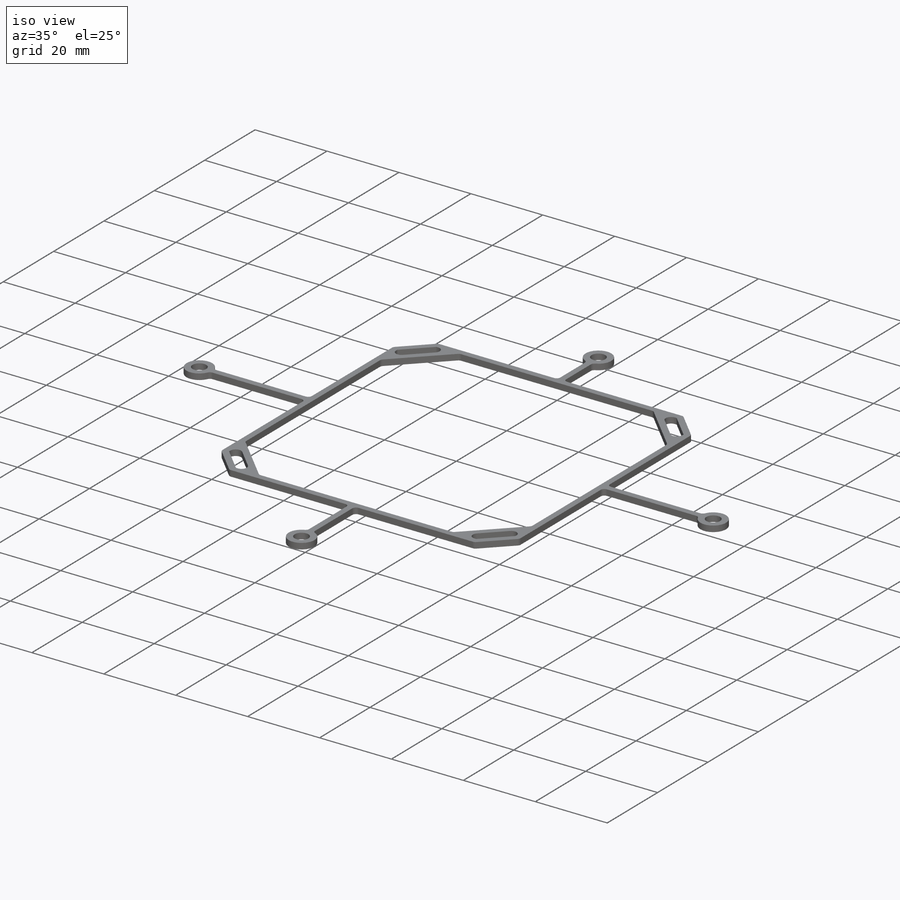
[diagram: iso view]
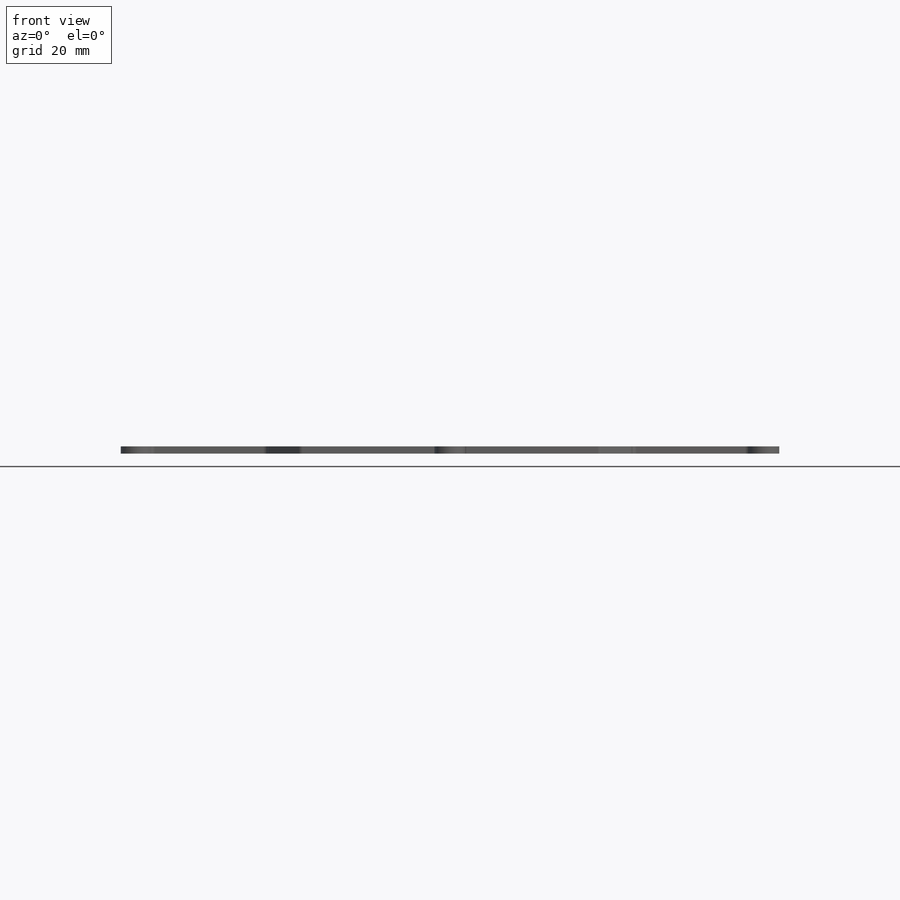
[diagram: front view]
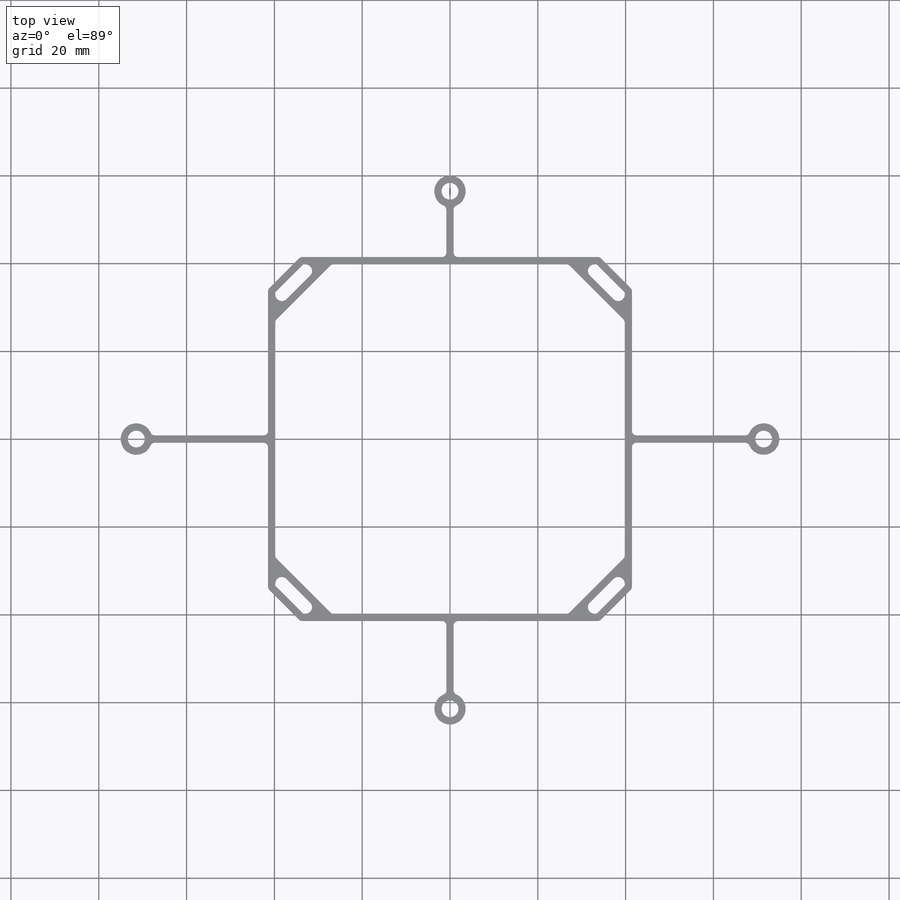
[diagram: top view]
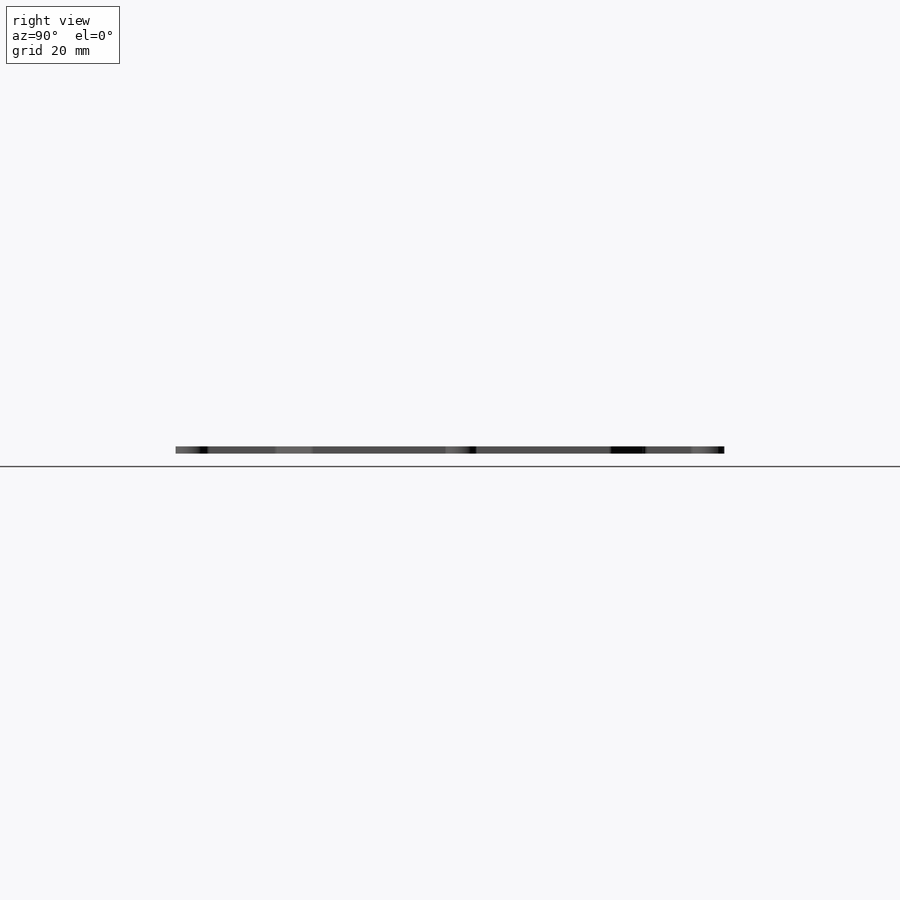
[diagram: right view]
SOLIDWORKS PART (.sldprt)
format: sldprt  version: not decoded by parser v0  size: 363,520 bytes
history: native  units: mm
features: fillet x3, material x1, sketch x1, extrude x1 (+13 scaffold rows collapsed)
feature tree (19):
  scaffold x13  (default folders/planes/origin — collapsed)
  material  "Material <not specified>"
  sketch  "Sketch1"  dims[c1.D10=3.85mm c1.D11=3.85mm c1.D15=3.85mm c1.D16=3.85mm c1.D20=3.85mm c1.D21=7.15mm c1.D1=79.5976mm c1.D2=79.5976mm c1.D3=9.0376mm c2.D2=79.5976mm c2.D5=79.5976mm c2.D1=1.65mm c3.D5=~66.816504mm c3.D6=~11.382909mm c3.D1=1.65mm c4.D5=1.65mm c4.D7=2.91mm c4.D8=1.65mm c4.D11=1.65mm c4.D12=0.825mm c4.D13=0.825mm c4.D14=15.0mm c4.D15=1.65mm c4.D17=30.0mm c4.D18=0.825mm c4.D19=0.825mm c4.D21=1.65mm c4.D22=0.825mm c4.D23=0.825mm c4.D24=20.0mm c4.D25=~12.839362mm c4.D4=4.0 c4.D6=4.0 c4.D9=4.0]
  extrude  "Boss-Extrude1"  Depth=1.65mm
  fillet  "Fillet4"  Radius=1mm
  fillet  "Fillet3"  Radius=1.5mm
  fillet  "Fillet5"  Radius=1mm
decode coverage: 5 of 5 modeling features carry decoded parameters
note: ~ marks probable driven/reference dimensions
note: suppression state not decoded; provenance and decode notes live in map.json
